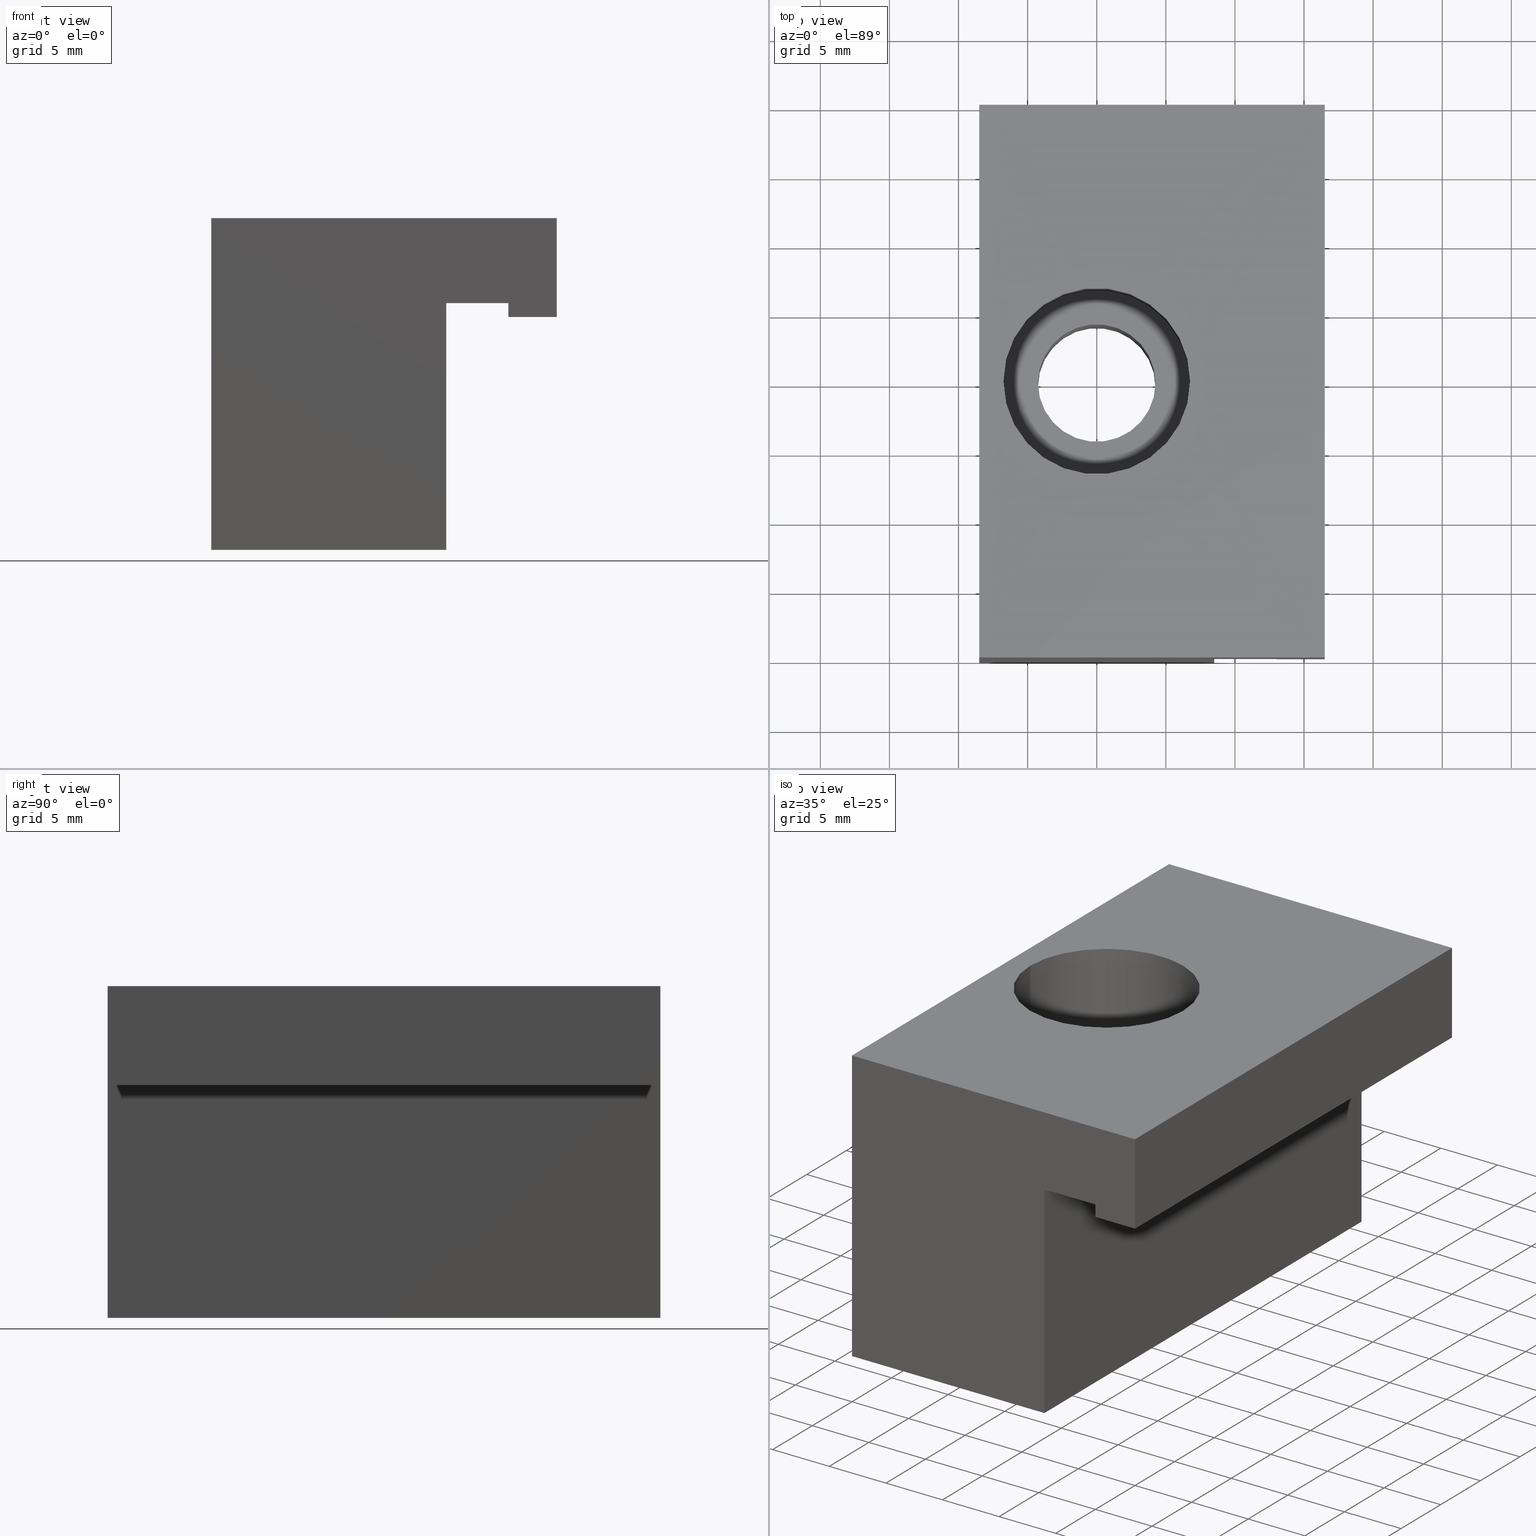
[diagram: canonical four-view strip — front | top / right | iso, engineering-drawing reading convention]
A machine part, canonical four-view strip (front | top / right | iso — engineering-drawing reading convention). The complete STEP part file that produces these views, byte-faithful:
ISO-10303-21;
HEADER;
/****************************************************************
 * Generated by software with PDE/Lib inside                    *
 * PDElib Version v4.4, created Mon 02/23/2004                  *
 * International Technegroup Inc. (www.iti-oh.com)              *
 ****************************************************************/
FILE_DESCRIPTION(('STEP AP203'),'2;1');
FILE_NAME('30.119.00.stp','2011-03-21T16:24:15',(''),(''),'2009.3.110','THINKDESIGN','');
FILE_SCHEMA(('CONFIG_CONTROL_DESIGN'));
ENDSEC;
DATA;
#2=CARTESIAN_POINT('',(8.499999999967258,-19.999999999919964,1.224647E-015));
#3=DIRECTION('',(-1.0,0.0,0.0));
#4=DIRECTION('',(0.0,0.0,1.0));
#5=AXIS2_PLACEMENT_3D('',#2,#3,#4);
#6=PLANE('',#5);
#7=CARTESIAN_POINT('',(8.499999999967258,-19.999999999919964,1.224647E-015));
#8=VERTEX_POINT('',#7);
#9=CARTESIAN_POINT('',(8.499999999967258,19.999999999919964,-1.224647E-015));
#10=VERTEX_POINT('',#9);
#11=CARTESIAN_POINT('',(8.499999999967258,-19.999999999919964,1.224647E-015));
#12=DIRECTION('',(0.0,1.0,0.0));
#13=VECTOR('',#12,39.999999999839929);
#14=LINE('',#11,#13);
#15=EDGE_CURVE('',#8,#10,#14,.T.);
#16=ORIENTED_EDGE('',*,*,#15,.T.);
#17=CARTESIAN_POINT('',(8.499999999967258,19.999999999919964,17.849999846508581));
#18=VERTEX_POINT('',#17);
#19=CARTESIAN_POINT('',(8.499999999967258,19.999999999919964,0.0));
#20=DIRECTION('',(0.0,0.0,1.0));
#21=VECTOR('',#20,17.849999846508581);
#22=LINE('',#19,#21);
#23=EDGE_CURVE('',#10,#18,#22,.T.);
#24=ORIENTED_EDGE('',*,*,#23,.T.);
#25=CARTESIAN_POINT('',(8.499999999967258,-19.999999999919964,17.849999846508581));
#26=VERTEX_POINT('',#25);
#27=CARTESIAN_POINT('',(8.499999999967258,-19.999999999919964,17.849999846508581));
#28=DIRECTION('',(0.0,1.0,0.0));
#29=VECTOR('',#28,39.999999999839929);
#30=LINE('',#27,#29);
#31=EDGE_CURVE('',#26,#18,#30,.T.);
#32=ORIENTED_EDGE('',*,*,#31,.F.);
#33=CARTESIAN_POINT('',(8.499999999967258,-19.999999999919964,0.0));
#34=DIRECTION('',(0.0,0.0,1.0));
#35=VECTOR('',#34,17.849999846508581);
#36=LINE('',#33,#35);
#37=EDGE_CURVE('',#8,#26,#36,.T.);
#38=ORIENTED_EDGE('',*,*,#37,.F.);
#39=EDGE_LOOP('',(#16,#24,#32,#38));
#40=FACE_OUTER_BOUND('',#39,.T.);
#41=ADVANCED_FACE('',(#40),#6,.F.);
#42=CARTESIAN_POINT('',(8.499999999967258,-19.999999999919964,17.849999846508581));
#43=DIRECTION('',(0.0,0.0,1.0));
#44=DIRECTION('',(1.0,0.0,0.0));
#45=AXIS2_PLACEMENT_3D('',#42,#43,#44);
#46=PLANE('',#45);
#47=ORIENTED_EDGE('',*,*,#31,.T.);
#48=CARTESIAN_POINT('',(12.999999999949068,19.999999999919964,17.849999846508581));
#49=VERTEX_POINT('',#48);
#50=CARTESIAN_POINT('',(8.499999999967258,19.999999999919964,17.849999846508581));
#51=DIRECTION('',(1.0,0.0,0.0));
#52=VECTOR('',#51,4.499999999981810);
#53=LINE('',#50,#52);
#54=EDGE_CURVE('',#18,#49,#53,.T.);
#55=ORIENTED_EDGE('',*,*,#54,.T.);
#56=CARTESIAN_POINT('',(12.999999999949068,-19.999999999919964,17.849999846508581));
#57=VERTEX_POINT('',#56);
#58=CARTESIAN_POINT('',(12.999999999949068,-19.999999999919964,17.849999846508581));
#59=DIRECTION('',(0.0,1.0,0.0));
#60=VECTOR('',#59,39.999999999839929);
#61=LINE('',#58,#60);
#62=EDGE_CURVE('',#57,#49,#61,.T.);
#63=ORIENTED_EDGE('',*,*,#62,.F.);
#64=CARTESIAN_POINT('',(8.499999999967258,-19.999999999919964,17.849999846508581));
#65=DIRECTION('',(1.0,0.0,0.0));
#66=VECTOR('',#65,4.499999999981810);
#67=LINE('',#64,#66);
#68=EDGE_CURVE('',#26,#57,#67,.T.);
#69=ORIENTED_EDGE('',*,*,#68,.F.);
#70=EDGE_LOOP('',(#47,#55,#63,#69));
#71=FACE_OUTER_BOUND('',#70,.T.);
#72=ADVANCED_FACE('',(#71),#46,.F.);
#73=CARTESIAN_POINT('',(12.999999999949068,-19.999999999919964,17.849999846508581));
#74=DIRECTION('',(1.0,0.0,0.0));
#75=DIRECTION('',(0.0,0.0,-1.0));
#76=AXIS2_PLACEMENT_3D('',#73,#74,#75);
#77=PLANE('',#76);
#78=ORIENTED_EDGE('',*,*,#62,.T.);
#79=CARTESIAN_POINT('',(12.999999999949068,19.999999999919964,16.849999720166124));
#80=VERTEX_POINT('',#79);
#81=CARTESIAN_POINT('',(12.999999999949068,19.999999999919964,17.849999846508581));
#82=DIRECTION('',(0.0,0.0,-1.0));
#83=VECTOR('',#82,1.000000126342457);
#84=LINE('',#81,#83);
#85=EDGE_CURVE('',#49,#80,#84,.T.);
#86=ORIENTED_EDGE('',*,*,#85,.T.);
#87=CARTESIAN_POINT('',(12.999999999949068,-19.999999999919964,16.849999720166124));
#88=VERTEX_POINT('',#87);
#89=CARTESIAN_POINT('',(12.999999999949068,-19.999999999919964,16.849999720166124));
#90=DIRECTION('',(0.0,1.0,0.0));
#91=VECTOR('',#90,39.999999999839929);
#92=LINE('',#89,#91);
#93=EDGE_CURVE('',#88,#80,#92,.T.);
#94=ORIENTED_EDGE('',*,*,#93,.F.);
#95=CARTESIAN_POINT('',(12.999999999949068,-19.999999999919964,17.849999846508581));
#96=DIRECTION('',(0.0,0.0,-1.0));
#97=VECTOR('',#96,1.000000126342457);
#98=LINE('',#95,#97);
#99=EDGE_CURVE('',#57,#88,#98,.T.);
#100=ORIENTED_EDGE('',*,*,#99,.F.);
#101=EDGE_LOOP('',(#78,#86,#94,#100));
#102=FACE_OUTER_BOUND('',#101,.T.);
#103=ADVANCED_FACE('',(#102),#77,.F.);
#104=CARTESIAN_POINT('',(12.999999999949068,-19.999999999919964,16.849999720166124));
#105=DIRECTION('',(0.0,0.0,1.0));
#106=DIRECTION('',(1.0,0.0,0.0));
#107=AXIS2_PLACEMENT_3D('',#104,#105,#106);
#108=PLANE('',#107);
#109=ORIENTED_EDGE('',*,*,#93,.T.);
#110=CARTESIAN_POINT('',(16.499999999934516,19.999999999919964,16.849999720166124));
#111=VERTEX_POINT('',#110);
#112=CARTESIAN_POINT('',(12.999999999949068,19.999999999919964,16.849999720166124));
#113=DIRECTION('',(1.0,0.0,0.0));
#114=VECTOR('',#113,3.499999999985448);
#115=LINE('',#112,#114);
#116=EDGE_CURVE('',#80,#111,#115,.T.);
#117=ORIENTED_EDGE('',*,*,#116,.T.);
#118=CARTESIAN_POINT('',(16.499999999934516,-19.999999999919964,16.849999720166124));
#119=VERTEX_POINT('',#118);
#120=CARTESIAN_POINT('',(16.499999999934516,-19.999999999919964,16.849999720166124));
#121=DIRECTION('',(0.0,1.0,0.0));
#122=VECTOR('',#121,39.999999999839929);
#123=LINE('',#120,#122);
#124=EDGE_CURVE('',#119,#111,#123,.T.);
#125=ORIENTED_EDGE('',*,*,#124,.F.);
#126=CARTESIAN_POINT('',(12.999999999949068,-19.999999999919964,16.849999720166124));
#127=DIRECTION('',(1.0,0.0,0.0));
#128=VECTOR('',#127,3.499999999985448);
#129=LINE('',#126,#128);
#130=EDGE_CURVE('',#88,#119,#129,.T.);
#131=ORIENTED_EDGE('',*,*,#130,.F.);
#132=EDGE_LOOP('',(#109,#117,#125,#131));
#133=FACE_OUTER_BOUND('',#132,.T.);
#134=ADVANCED_FACE('',(#133),#108,.F.);
#135=CARTESIAN_POINT('',(16.499999999934516,-19.999999999919964,16.849999720166124));
#136=DIRECTION('',(-1.0,0.0,0.0));
#137=DIRECTION('',(0.0,0.0,1.0));
#138=AXIS2_PLACEMENT_3D('',#135,#136,#137);
#139=PLANE('',#138);
#140=ORIENTED_EDGE('',*,*,#124,.T.);
#141=CARTESIAN_POINT('',(16.499999999934516,19.999999999919964,23.999999625544660));
#142=VERTEX_POINT('',#141);
#143=CARTESIAN_POINT('',(16.499999999934516,19.999999999919964,16.849999720166124));
#144=DIRECTION('',(0.0,0.0,1.0));
#145=VECTOR('',#144,7.149999905378536);
#146=LINE('',#143,#145);
#147=EDGE_CURVE('',#111,#142,#146,.T.);
#148=ORIENTED_EDGE('',*,*,#147,.T.);
#149=CARTESIAN_POINT('',(16.499999999934516,-19.999999999919964,23.999999625544660));
#150=VERTEX_POINT('',#149);
#151=CARTESIAN_POINT('',(16.499999999934516,-19.999999999919964,23.999999625544660));
#152=DIRECTION('',(0.0,1.0,0.0));
#153=VECTOR('',#152,39.999999999839929);
#154=LINE('',#151,#153);
#155=EDGE_CURVE('',#150,#142,#154,.T.);
#156=ORIENTED_EDGE('',*,*,#155,.F.);
#157=CARTESIAN_POINT('',(16.499999999934516,-19.999999999919964,16.849999720166124));
#158=DIRECTION('',(0.0,0.0,1.0));
#159=VECTOR('',#158,7.149999905378536);
#160=LINE('',#157,#159);
#161=EDGE_CURVE('',#119,#150,#160,.T.);
#162=ORIENTED_EDGE('',*,*,#161,.F.);
#163=EDGE_LOOP('',(#140,#148,#156,#162));
#164=FACE_OUTER_BOUND('',#163,.T.);
#165=ADVANCED_FACE('',(#164),#139,.F.);
#166=CARTESIAN_POINT('',(16.499999999934516,-19.999999999919964,23.999999625544660));
#167=DIRECTION('',(0.0,0.0,-1.0));
#168=DIRECTION('',(-1.0,0.0,0.0));
#169=AXIS2_PLACEMENT_3D('',#166,#167,#168);
#170=PLANE('',#169);
#171=ORIENTED_EDGE('',*,*,#155,.T.);
#172=CARTESIAN_POINT('',(-8.499999999967258,19.999999999919964,23.999999625544660));
#173=VERTEX_POINT('',#172);
#174=CARTESIAN_POINT('',(16.499999999934516,19.999999999919964,23.999999625544660));
#175=DIRECTION('',(-1.0,0.0,0.0));
#176=VECTOR('',#175,24.999999999901775);
#177=LINE('',#174,#176);
#178=EDGE_CURVE('',#142,#173,#177,.T.);
#179=ORIENTED_EDGE('',*,*,#178,.T.);
#180=CARTESIAN_POINT('',(-8.499999999967258,-19.999999999919964,23.999999625544660));
#181=VERTEX_POINT('',#180);
#182=CARTESIAN_POINT('',(-8.499999999967258,-19.999999999919964,23.999999625544660));
#183=DIRECTION('',(0.0,1.0,0.0));
#184=VECTOR('',#183,39.999999999839929);
#185=LINE('',#182,#184);
#186=EDGE_CURVE('',#181,#173,#185,.T.);
#187=ORIENTED_EDGE('',*,*,#186,.F.);
#188=CARTESIAN_POINT('',(16.499999999934516,-19.999999999919964,23.999999625544660));
#189=DIRECTION('',(-1.0,0.0,0.0));
#190=VECTOR('',#189,24.999999999901775);
#191=LINE('',#188,#190);
#192=EDGE_CURVE('',#150,#181,#191,.T.);
#193=ORIENTED_EDGE('',*,*,#192,.F.);
#194=EDGE_LOOP('',(#171,#179,#187,#193));
#195=FACE_OUTER_BOUND('',#194,.T.);
#196=CARTESIAN_POINT('',(6.749999999974534,1.469576E-015,23.999999625544660));
#197=VERTEX_POINT('',#196);
#198=CARTESIAN_POINT('',(-6.749999999974534,1.469576E-015,23.999999625544660));
#199=VERTEX_POINT('',#198);
#200=CARTESIAN_POINT('',(0.0,1.469576E-015,23.999999625544660));
#201=DIRECTION('',(0.0,0.0,1.0));
#202=DIRECTION('',(-1.0,0.0,0.0));
#203=AXIS2_PLACEMENT_3D('',#200,#201,#202);
#204=CIRCLE('',#203,6.749999999974534);
#205=EDGE_CURVE('',#197,#199,#204,.T.);
#206=ORIENTED_EDGE('',*,*,#205,.F.);
#207=CARTESIAN_POINT('',(0.0,1.469576E-015,23.999999625544660));
#208=DIRECTION('',(0.0,0.0,1.0));
#209=DIRECTION('',(-1.0,0.0,0.0));
#210=AXIS2_PLACEMENT_3D('',#207,#208,#209);
#211=CIRCLE('',#210,6.749999999974534);
#212=EDGE_CURVE('',#199,#197,#211,.T.);
#213=ORIENTED_EDGE('',*,*,#212,.F.);
#214=EDGE_LOOP('',(#206,#213));
#215=FACE_BOUND('',#214,.T.);
#216=ADVANCED_FACE('',(#195,#215),#170,.F.);
#217=CARTESIAN_POINT('',(-8.499999999967258,-19.999999999919964,23.999999625544660));
#218=DIRECTION('',(1.0,0.0,0.0));
#219=DIRECTION('',(0.0,0.0,-1.0));
#220=AXIS2_PLACEMENT_3D('',#217,#218,#219);
#221=PLANE('',#220);
#222=ORIENTED_EDGE('',*,*,#186,.T.);
#223=CARTESIAN_POINT('',(-8.499999999963620,19.999999999919964,-1.224647E-015));
#224=VERTEX_POINT('',#223);
#225=CARTESIAN_POINT('',(-8.499999999967258,19.999999999919964,23.999999625544660));
#226=DIRECTION('',(0.0,0.0,-1.0));
#227=VECTOR('',#226,23.999999625544660);
#228=LINE('',#225,#227);
#229=EDGE_CURVE('',#173,#224,#228,.T.);
#230=ORIENTED_EDGE('',*,*,#229,.T.);
#231=CARTESIAN_POINT('',(-8.499999999963620,-19.999999999919964,1.224647E-015));
#232=VERTEX_POINT('',#231);
#233=CARTESIAN_POINT('',(-8.499999999963620,-19.999999999919964,1.224647E-015));
#234=DIRECTION('',(0.0,1.0,0.0));
#235=VECTOR('',#234,39.999999999839929);
#236=LINE('',#233,#235);
#237=EDGE_CURVE('',#232,#224,#236,.T.);
#238=ORIENTED_EDGE('',*,*,#237,.F.);
#239=CARTESIAN_POINT('',(-8.499999999967258,-19.999999999919964,23.999999625544660));
#240=DIRECTION('',(0.0,0.0,-1.0));
#241=VECTOR('',#240,23.999999625544660);
#242=LINE('',#239,#241);
#243=EDGE_CURVE('',#181,#232,#242,.T.);
#244=ORIENTED_EDGE('',*,*,#243,.F.);
#245=EDGE_LOOP('',(#222,#230,#238,#244));
#246=FACE_OUTER_BOUND('',#245,.T.);
#247=ADVANCED_FACE('',(#246),#221,.F.);
#248=CARTESIAN_POINT('',(-8.499999999963620,-19.999999999919964,1.224647E-015));
#249=DIRECTION('',(0.0,0.0,1.0));
#250=DIRECTION('',(1.0,0.0,0.0));
#251=AXIS2_PLACEMENT_3D('',#248,#249,#250);
#252=PLANE('',#251);
#253=CARTESIAN_POINT('',(-8.499999999963620,-19.999999999919964,1.224647E-015));
#254=DIRECTION('',(1.0,0.0,0.0));
#255=VECTOR('',#254,16.999999999930878);
#256=LINE('',#253,#255);
#257=EDGE_CURVE('',#232,#8,#256,.T.);
#258=ORIENTED_EDGE('',*,*,#257,.F.);
#259=ORIENTED_EDGE('',*,*,#237,.T.);
#260=CARTESIAN_POINT('',(-8.499999999963620,19.999999999919964,-1.224647E-015));
#261=DIRECTION('',(1.0,0.0,0.0));
#262=VECTOR('',#261,16.999999999930878);
#263=LINE('',#260,#262);
#264=EDGE_CURVE('',#224,#10,#263,.T.);
#265=ORIENTED_EDGE('',*,*,#264,.T.);
#266=ORIENTED_EDGE('',*,*,#15,.F.);
#267=EDGE_LOOP('',(#258,#259,#265,#266));
#268=FACE_OUTER_BOUND('',#267,.T.);
#269=CARTESIAN_POINT('',(-4.249999999981810,0.0,0.0));
#270=VERTEX_POINT('',#269);
#271=CARTESIAN_POINT('',(4.249999999981810,0.0,0.0));
#272=VERTEX_POINT('',#271);
#273=CARTESIAN_POINT('',(0.0,0.0,0.0));
#274=DIRECTION('',(0.0,0.0,1.0));
#275=DIRECTION('',(-1.0,0.0,0.0));
#276=AXIS2_PLACEMENT_3D('',#273,#274,#275);
#277=CIRCLE('',#276,4.249999999981810);
#278=EDGE_CURVE('',#270,#272,#277,.T.);
#279=ORIENTED_EDGE('',*,*,#278,.T.);
#280=CARTESIAN_POINT('',(0.0,0.0,0.0));
#281=DIRECTION('',(0.0,0.0,1.0));
#282=DIRECTION('',(-1.0,0.0,0.0));
#283=AXIS2_PLACEMENT_3D('',#280,#281,#282);
#284=CIRCLE('',#283,4.249999999981810);
#285=EDGE_CURVE('',#272,#270,#284,.T.);
#286=ORIENTED_EDGE('',*,*,#285,.T.);
#287=EDGE_LOOP('',(#279,#286));
#288=FACE_BOUND('',#287,.T.);
#289=ADVANCED_FACE('',(#268,#288),#252,.F.);
#290=CARTESIAN_POINT('',(-11.000004773675755,-19.999999999919964,-2.400004736280606));
#291=DIRECTION('',(0.0,-1.0,0.0));
#292=DIRECTION('',(1.0,0.0,0.0));
#293=AXIS2_PLACEMENT_3D('',#290,#291,#292);
#294=PLANE('',#293);
#295=ORIENTED_EDGE('',*,*,#37,.T.);
#296=ORIENTED_EDGE('',*,*,#68,.T.);
#297=ORIENTED_EDGE('',*,*,#99,.T.);
#298=ORIENTED_EDGE('',*,*,#130,.T.);
#299=ORIENTED_EDGE('',*,*,#161,.T.);
#300=ORIENTED_EDGE('',*,*,#192,.T.);
#301=ORIENTED_EDGE('',*,*,#243,.T.);
#302=ORIENTED_EDGE('',*,*,#257,.T.);
#303=EDGE_LOOP('',(#295,#296,#297,#298,#299,#300,#301,#302));
#304=FACE_OUTER_BOUND('',#303,.T.);
#305=ADVANCED_FACE('',(#304),#294,.T.);
#306=CARTESIAN_POINT('',(-11.000004773675755,19.999999999919964,-2.400004736280609));
#307=DIRECTION('',(0.0,-1.0,0.0));
#308=DIRECTION('',(1.0,0.0,0.0));
#309=AXIS2_PLACEMENT_3D('',#306,#307,#308);
#310=PLANE('',#309);
#311=ORIENTED_EDGE('',*,*,#264,.F.);
#312=ORIENTED_EDGE('',*,*,#229,.F.);
#313=ORIENTED_EDGE('',*,*,#178,.F.);
#314=ORIENTED_EDGE('',*,*,#147,.F.);
#315=ORIENTED_EDGE('',*,*,#116,.F.);
#316=ORIENTED_EDGE('',*,*,#85,.F.);
#317=ORIENTED_EDGE('',*,*,#54,.F.);
#318=ORIENTED_EDGE('',*,*,#23,.F.);
#319=EDGE_LOOP('',(#311,#312,#313,#314,#315,#316,#317,#318));
#320=FACE_OUTER_BOUND('',#319,.T.);
#321=ADVANCED_FACE('',(#320),#310,.F.);
#322=CARTESIAN_POINT('',(0.0,-1.469576E-016,-2.400000374454976));
#323=DIRECTION('',(0.0,0.0,1.0));
#324=DIRECTION('',(-1.0,0.0,0.0));
#325=AXIS2_PLACEMENT_3D('',#322,#323,#324);
#326=CYLINDRICAL_SURFACE('',#325,4.249999999981810);
#327=CARTESIAN_POINT('',(-4.249999999981810,9.797174E-016,15.999998935351869));
#328=VERTEX_POINT('',#327);
#329=CARTESIAN_POINT('',(-4.249999999981810,0.0,0.0));
#330=DIRECTION('',(0.0,0.0,1.0));
#331=VECTOR('',#330,15.999998935351869);
#332=LINE('',#329,#331);
#333=EDGE_CURVE('',#270,#328,#332,.T.);
#334=ORIENTED_EDGE('',*,*,#333,.F.);
#335=ORIENTED_EDGE('',*,*,#285,.F.);
#336=ORIENTED_EDGE('',*,*,#278,.F.);
#337=ORIENTED_EDGE('',*,*,#333,.T.);
#338=CARTESIAN_POINT('',(4.249999999981810,9.797174E-016,15.999998935351869));
#339=VERTEX_POINT('',#338);
#340=CARTESIAN_POINT('',(0.0,9.797174E-016,15.999998935351869));
#341=DIRECTION('',(0.0,0.0,1.0));
#342=DIRECTION('',(-1.0,0.0,0.0));
#343=AXIS2_PLACEMENT_3D('',#340,#341,#342);
#344=CIRCLE('',#343,4.249999999981810);
#345=EDGE_CURVE('',#328,#339,#344,.T.);
#346=ORIENTED_EDGE('',*,*,#345,.T.);
#347=CARTESIAN_POINT('',(0.0,9.797174E-016,15.999998935351869));
#348=DIRECTION('',(0.0,0.0,1.0));
#349=DIRECTION('',(-1.0,0.0,0.0));
#350=AXIS2_PLACEMENT_3D('',#347,#348,#349);
#351=CIRCLE('',#350,4.249999999981810);
#352=EDGE_CURVE('',#339,#328,#351,.T.);
#353=ORIENTED_EDGE('',*,*,#352,.T.);
#354=EDGE_LOOP('',(#334,#335,#336,#337,#346,#353));
#355=FACE_OUTER_BOUND('',#354,.T.);
#356=ADVANCED_FACE('',(#355),#326,.F.);
#357=CARTESIAN_POINT('',(13.499999999949068,13.499999999949070,15.999998935351869));
#358=DIRECTION('',(0.0,0.0,-1.0));
#359=DIRECTION('',(0.0,-1.0,0.0));
#360=AXIS2_PLACEMENT_3D('',#357,#358,#359);
#361=PLANE('',#360);
#362=CARTESIAN_POINT('',(-6.749999999974534,9.797174E-016,15.999998935351869));
#363=VERTEX_POINT('',#362);
#364=CARTESIAN_POINT('',(6.749999999974534,9.797174E-016,15.999998935351869));
#365=VERTEX_POINT('',#364);
#366=CARTESIAN_POINT('',(0.0,9.797174E-016,15.999998935351869));
#367=DIRECTION('',(0.0,0.0,1.0));
#368=DIRECTION('',(-1.0,0.0,0.0));
#369=AXIS2_PLACEMENT_3D('',#366,#367,#368);
#370=CIRCLE('',#369,6.749999999974534);
#371=EDGE_CURVE('',#363,#365,#370,.T.);
#372=ORIENTED_EDGE('',*,*,#371,.T.);
#373=CARTESIAN_POINT('',(0.0,9.797174E-016,15.999998935351869));
#374=DIRECTION('',(0.0,0.0,1.0));
#375=DIRECTION('',(-1.0,0.0,0.0));
#376=AXIS2_PLACEMENT_3D('',#373,#374,#375);
#377=CIRCLE('',#376,6.749999999974534);
#378=EDGE_CURVE('',#365,#363,#377,.T.);
#379=ORIENTED_EDGE('',*,*,#378,.T.);
#380=EDGE_LOOP('',(#372,#379));
#381=FACE_OUTER_BOUND('',#380,.T.);
#382=ORIENTED_EDGE('',*,*,#352,.F.);
#383=ORIENTED_EDGE('',*,*,#345,.F.);
#384=EDGE_LOOP('',(#382,#383));
#385=FACE_BOUND('',#384,.T.);
#386=ADVANCED_FACE('',(#381,#385),#361,.F.);
#387=CARTESIAN_POINT('',(0.0,9.797174E-016,15.999998935351869));
#388=DIRECTION('',(0.0,0.0,1.0));
#389=DIRECTION('',(-1.0,0.0,0.0));
#390=AXIS2_PLACEMENT_3D('',#387,#388,#389);
#391=CYLINDRICAL_SURFACE('',#390,6.749999999974534);
#392=CARTESIAN_POINT('',(-6.749999999974534,9.797174E-016,15.999998935351869));
#393=DIRECTION('',(0.0,0.0,1.0));
#394=VECTOR('',#393,8.000000690192792);
#395=LINE('',#392,#394);
#396=EDGE_CURVE('',#363,#199,#395,.T.);
#397=ORIENTED_EDGE('',*,*,#396,.T.);
#398=ORIENTED_EDGE('',*,*,#212,.T.);
#399=ORIENTED_EDGE('',*,*,#205,.T.);
#400=ORIENTED_EDGE('',*,*,#396,.F.);
#401=ORIENTED_EDGE('',*,*,#378,.F.);
#402=ORIENTED_EDGE('',*,*,#371,.F.);
#403=EDGE_LOOP('',(#397,#398,#399,#400,#401,#402));
#404=FACE_OUTER_BOUND('',#403,.T.);
#405=ADVANCED_FACE('',(#404),#391,.F.);
#406=CLOSED_SHELL('',(#41,#72,#103,#134,#165,#216,#247,#289,#305,#321,#356,#386,#405));
#407=MANIFOLD_SOLID_BREP('',#406);
#413=(NAMED_UNIT(*)PLANE_ANGLE_UNIT()SI_UNIT($,.RADIAN.));
#414=DIMENSIONAL_EXPONENTS(0.0,0.0,0.0,0.0,0.0,0.0,0.0);
#415=PLANE_ANGLE_MEASURE_WITH_UNIT(PLANE_ANGLE_MEASURE(0.017453292500000),#413);
#419=(CONVERSION_BASED_UNIT('DEGREE',#415)NAMED_UNIT(#414)PLANE_ANGLE_UNIT());
#423=(NAMED_UNIT(*)SI_UNIT($,.STERADIAN.)SOLID_ANGLE_UNIT());
#427=(LENGTH_UNIT()NAMED_UNIT(*)SI_UNIT(.MILLI.,.METRE.));
#429=UNCERTAINTY_MEASURE_WITH_UNIT(LENGTH_MEASURE(0.001000000000000),#427,'DISTANCE_ACCURACY_VALUE','');
#431=(GEOMETRIC_REPRESENTATION_CONTEXT(3)GLOBAL_UNCERTAINTY_ASSIGNED_CONTEXT((#429))GLOBAL_UNIT_ASSIGNED_CONTEXT((#419,#423,#427))REPRESENTATION_CONTEXT('thinkdesign','2009.3.110'));
#432=ADVANCED_BREP_SHAPE_REPRESENTATION('',(#407),#431);
#433=APPLICATION_CONTEXT('configuration controlled 3D designs of mechanical parts and assemblies');
#434=APPLICATION_PROTOCOL_DEFINITION('International Standard','config_control_design',1995,#433);
#435=MECHANICAL_CONTEXT('None',#433,'mechanical');
#436=PRODUCT('None','None','None',(#435));
#437=PRODUCT_RELATED_PRODUCT_CATEGORY('detail',$,(#436));
#438=PRODUCT_CATEGORY('part',$);
#439=PRODUCT_CATEGORY_RELATIONSHIP('None','None',#438,#437);
#440=PERSON('PERSON1','None','None',$,$,$);
#441=ORGANIZATION('','None','None');
#442=PERSON_AND_ORGANIZATION(#440,#441);
#443=PERSON_AND_ORGANIZATION_ROLE('design_owner');
#444=CC_DESIGN_PERSON_AND_ORGANIZATION_ASSIGNMENT(#442,#443,(#436));
#445=PRODUCT_DEFINITION_FORMATION_WITH_SPECIFIED_SOURCE('None','None',#436,.NOT_KNOWN.);
#446=PERSON('PERSON2','None','None',$,$,$);
#447=ORGANIZATION('','None','None');
#448=PERSON_AND_ORGANIZATION(#446,#447);
#449=PERSON_AND_ORGANIZATION_ROLE('creator');
#450=CC_DESIGN_PERSON_AND_ORGANIZATION_ASSIGNMENT(#448,#449,(#445));
#451=PERSON('PERSON3','None','None',$,$,$);
#452=ORGANIZATION('','None','None');
#453=PERSON_AND_ORGANIZATION(#451,#452);
#454=PERSON_AND_ORGANIZATION_ROLE('part_supplier');
#455=CC_DESIGN_PERSON_AND_ORGANIZATION_ASSIGNMENT(#453,#454,(#445));
#456=APPROVAL_STATUS('approved');
#457=APPROVAL(#456,'None');
#458=PERSON('PERSON4','None','None',$,$,$);
#459=ORGANIZATION('','None','None');
#460=PERSON_AND_ORGANIZATION(#458,#459);
#461=APPROVAL_ROLE('None');
#462=APPROVAL_PERSON_ORGANIZATION(#460,#457,#461);
#463=CALENDAR_DATE(2011,21,3);
#464=COORDINATED_UNIVERSAL_TIME_OFFSET(0,0,.AHEAD.);
#465=LOCAL_TIME(16,24,15.0,#464);
#466=DATE_AND_TIME(#463,#465);
#467=APPROVAL_DATE_TIME(#466,#457);
#468=CC_DESIGN_APPROVAL(#457,(#445));
#469=SECURITY_CLASSIFICATION_LEVEL('unclassified');
#470=SECURITY_CLASSIFICATION('None','None',#469);
#471=CC_DESIGN_SECURITY_CLASSIFICATION(#470,(#445));
#472=APPROVAL_STATUS('approved');
#473=APPROVAL(#472,'None');
#474=PERSON('PERSON5','None','None',$,$,$);
#475=ORGANIZATION('','None','None');
#476=PERSON_AND_ORGANIZATION(#474,#475);
#477=APPROVAL_ROLE('None');
#478=APPROVAL_PERSON_ORGANIZATION(#476,#473,#477);
#479=CALENDAR_DATE(2011,21,3);
#480=COORDINATED_UNIVERSAL_TIME_OFFSET(0,0,.AHEAD.);
#481=LOCAL_TIME(16,24,15.0,#480);
#482=DATE_AND_TIME(#479,#481);
#483=APPROVAL_DATE_TIME(#482,#473);
#484=CC_DESIGN_APPROVAL(#473,(#470));
#485=PERSON('PERSON6','None','None',$,$,$);
#486=ORGANIZATION('','None','None');
#487=PERSON_AND_ORGANIZATION(#485,#486);
#488=PERSON_AND_ORGANIZATION_ROLE('classification_officer');
#489=CC_DESIGN_PERSON_AND_ORGANIZATION_ASSIGNMENT(#487,#488,(#470));
#490=DATE_TIME_ROLE('classification_date');
#491=CALENDAR_DATE(2011,21,3);
#492=COORDINATED_UNIVERSAL_TIME_OFFSET(0,0,.AHEAD.);
#493=LOCAL_TIME(16,24,15.0,#492);
#494=DATE_AND_TIME(#491,#493);
#495=CC_DESIGN_DATE_AND_TIME_ASSIGNMENT(#494,#490,(#470));
#496=DESIGN_CONTEXT('part definition',#433,'design');
#497=DOCUMENT_TYPE('cad_filename');
#498=DOCUMENT('None','None','None',#497);
#499=PRODUCT_DEFINITION_WITH_ASSOCIATED_DOCUMENTS('None','None',#445,#496,(#498));
#500=PERSON('PERSON7','None','None',$,$,$);
#501=ORGANIZATION('','None','None');
#502=PERSON_AND_ORGANIZATION(#500,#501);
#503=PERSON_AND_ORGANIZATION_ROLE('creator');
#504=CC_DESIGN_PERSON_AND_ORGANIZATION_ASSIGNMENT(#502,#503,(#499));
#505=DATE_TIME_ROLE('creation_date');
#506=CALENDAR_DATE(2011,21,3);
#507=COORDINATED_UNIVERSAL_TIME_OFFSET(0,0,.AHEAD.);
#508=LOCAL_TIME(16,24,15.0,#507);
#509=DATE_AND_TIME(#506,#508);
#510=CC_DESIGN_DATE_AND_TIME_ASSIGNMENT(#509,#505,(#499));
#511=APPROVAL_STATUS('approved');
#512=APPROVAL(#511,'None');
#513=PERSON('PERSON8','None','None',$,$,$);
#514=ORGANIZATION('','None','None');
#515=PERSON_AND_ORGANIZATION(#513,#514);
#516=APPROVAL_ROLE('None');
#517=APPROVAL_PERSON_ORGANIZATION(#515,#512,#516);
#518=CALENDAR_DATE(2011,21,3);
#519=COORDINATED_UNIVERSAL_TIME_OFFSET(0,0,.AHEAD.);
#520=LOCAL_TIME(16,24,15.0,#519);
#521=DATE_AND_TIME(#518,#520);
#522=APPROVAL_DATE_TIME(#521,#512);
#523=CC_DESIGN_APPROVAL(#512,(#499));
#524=PRODUCT_DEFINITION_SHAPE('None','None',#499);
#525=SHAPE_DEFINITION_REPRESENTATION(#524,#432);
#526=DIMENSIONAL_EXPONENTS(0.0,0.0,0.0,0.0,0.0,0.0,0.0);
#527=DIMENSIONAL_EXPONENTS(1.0,0.0,0.0,0.0,0.0,0.0,0.0);
ENDSEC;
END-ISO-10303-21;
